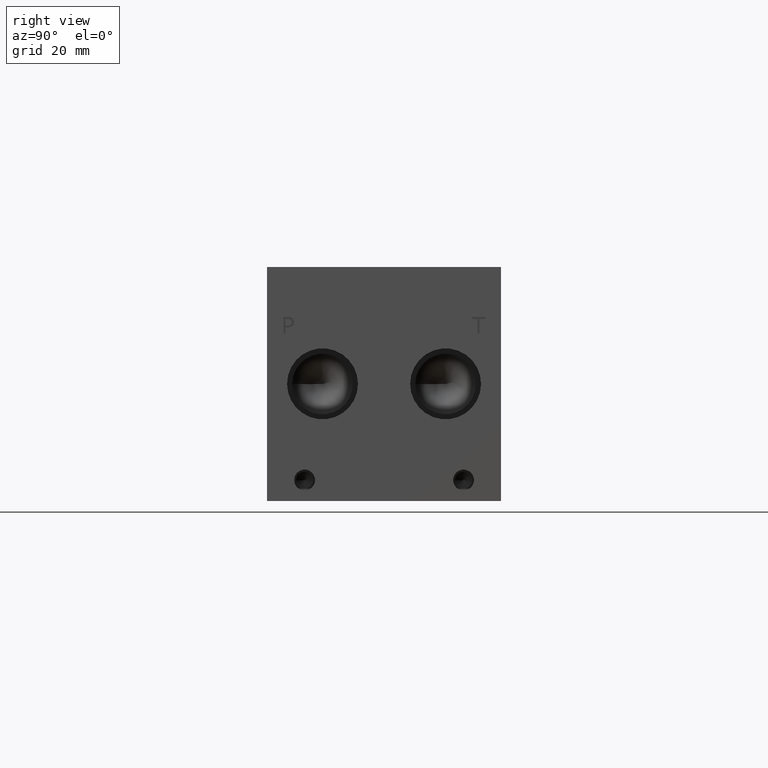
[diagram: clean part render]
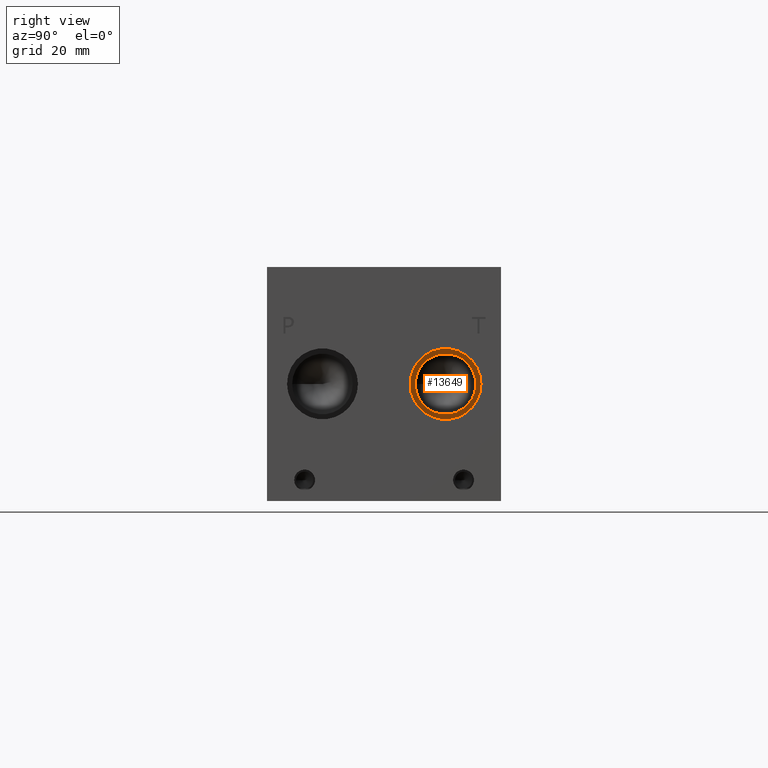
[diagram: same view with one face highlighted and labeled with its STEP entity id]
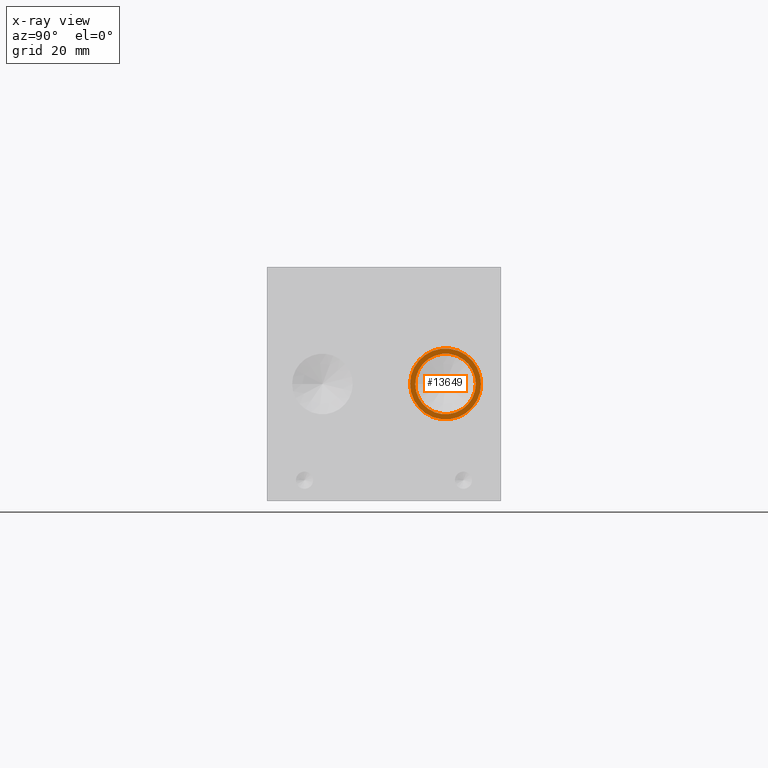
[diagram: x-ray of the same camera — body ghosted, the highlighted face saturated]
A machine part, right view. The second image highlights one B-rep face of the part: STEP entity #13649.
The next image is the same camera in x-ray: the body ghosted, the highlighted face saturated — about 0% of this face is hidden behind the body in this view.
In plain terms, the highlighted planar face has unit normal (1, 0, 0).
Its self-contained STEP definition (entity closure, byte-faithful):
#418=CIRCLE('',#14267,13.462);
#419=CIRCLE('',#14268,13.462);
#420=CIRCLE('',#14269,11.5062);
#1054=FACE_BOUND('',#2477,.T.);
#1695=FACE_OUTER_BOUND('',#2476,.T.);
#2476=EDGE_LOOP('',(#11565,#11566));
#2477=EDGE_LOOP('',(#11567));
#6232=VERTEX_POINT('',#23226);
#6233=VERTEX_POINT('',#23227);
#6234=VERTEX_POINT('',#23230);
#8075=EDGE_CURVE('',#6232,#6233,#418,.T.);
#8076=EDGE_CURVE('',#6233,#6232,#419,.T.);
#8077=EDGE_CURVE('',#6234,#6234,#420,.T.);
#11565=ORIENTED_EDGE('',*,*,#8075,.T.);
#11566=ORIENTED_EDGE('',*,*,#8076,.T.);
#11567=ORIENTED_EDGE('',*,*,#8077,.F.);
#12492=PLANE('',#14266);
#13649=ADVANCED_FACE('',(#1695,#1054),#12492,.T.);
#14266=AXIS2_PLACEMENT_3D('',#23225,#16694,#16695);
#14267=AXIS2_PLACEMENT_3D('',#23228,#16696,#16697);
#14268=AXIS2_PLACEMENT_3D('',#23229,#16698,#16699);
#14269=AXIS2_PLACEMENT_3D('',#23231,#16700,#16701);
#16694=DIRECTION('center_axis',(1.,0.,0.));
#16695=DIRECTION('ref_axis',(0.,1.,0.));
#16696=DIRECTION('center_axis',(1.,0.,0.));
#16697=DIRECTION('ref_axis',(0.,1.,0.));
#16698=DIRECTION('center_axis',(1.,0.,0.));
#16699=DIRECTION('ref_axis',(0.,1.,0.));
#16700=DIRECTION('center_axis',(1.,0.,0.));
#16701=DIRECTION('ref_axis',(0.,1.,0.));
#23225=CARTESIAN_POINT('Origin',(231.8004,67.818,44.45));
#23226=CARTESIAN_POINT('',(231.8004,81.28,44.45));
#23227=CARTESIAN_POINT('',(231.8004,54.356,44.45));
#23228=CARTESIAN_POINT('Origin',(231.8004,67.818,44.45));
#23229=CARTESIAN_POINT('Origin',(231.8004,67.818,44.45));
#23230=CARTESIAN_POINT('',(231.8004,56.3118,44.45));
#23231=CARTESIAN_POINT('Origin',(231.8004,67.818,44.45));